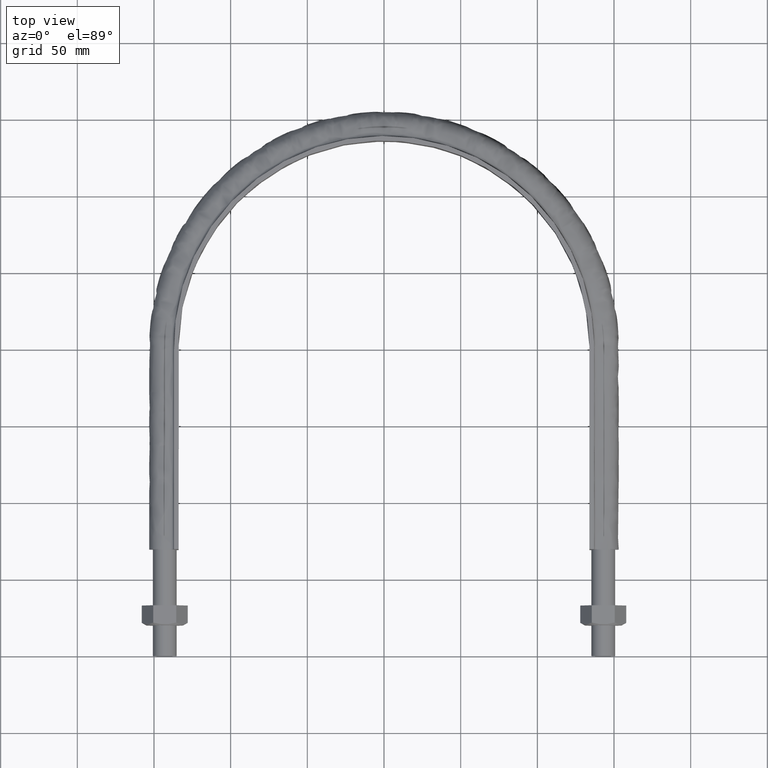
[diagram: clean part render]
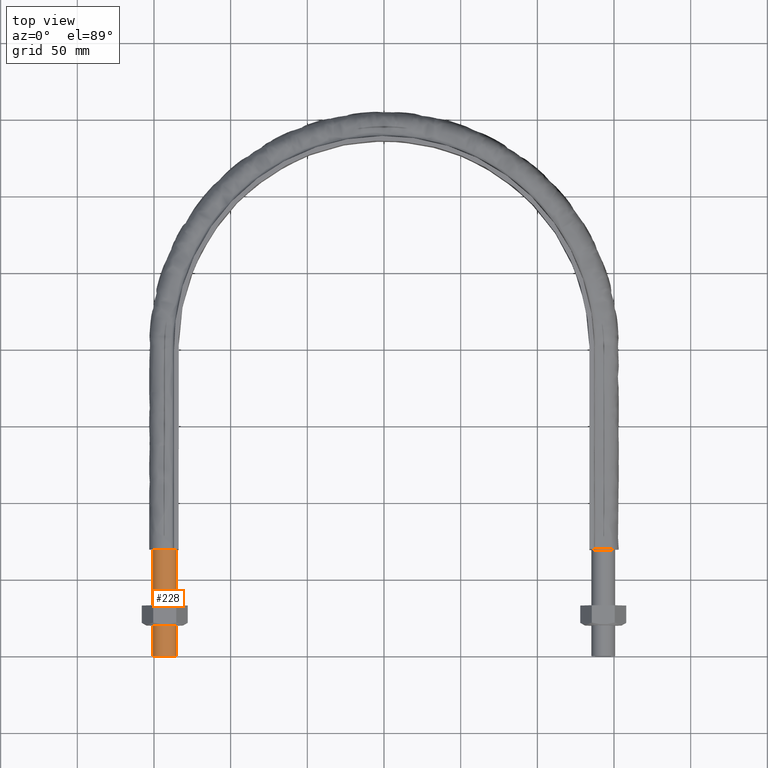
[diagram: same view with one face highlighted and labeled with its STEP entity id]
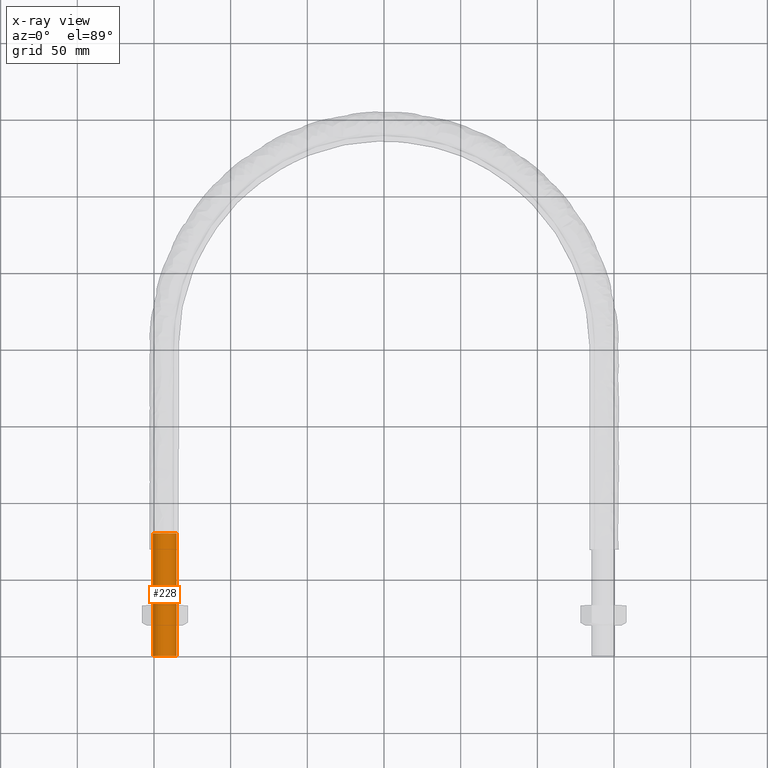
[diagram: x-ray of the same camera — body ghosted, the highlighted face saturated]
A machine part, top view. The second image highlights one B-rep face of the part: STEP entity #228.
The next image is the same camera in x-ray: the body ghosted, the highlighted face saturated — about 0% of this face is hidden behind the body in this view.
In plain terms, the highlighted cylindrical surface (bore or boss wall) has radius 7.75 mm, axis along (-0, -1, 0).
Its self-contained STEP definition (entity closure, byte-faithful):
#228 = ADVANCED_FACE( '', ( #281, #282 ), #283, .T. );
#281 = FACE_OUTER_BOUND( '', #1113, .T. );
#282 = FACE_OUTER_BOUND( '', #1114, .T. );
#283 = CYLINDRICAL_SURFACE( '', #1115, 7.75000000000001 );
#1113 = EDGE_LOOP( '', ( #1636 ) );
#1114 = EDGE_LOOP( '', ( #1637 ) );
#1115 = AXIS2_PLACEMENT_3D( '', #1638, #1639, #1640 );
#1636 = ORIENTED_EDGE( '', *, *, #1850, .F. );
#1637 = ORIENTED_EDGE( '', *, *, #1851, .T. );
#1638 = CARTESIAN_POINT( '', ( -143.000000000000, 80.0000000000001, -2.44921270764475E-014 ) );
#1639 = DIRECTION( '', ( -2.44921270764476E-016, -1.00000000000000, 3.06151588455594E-016 ) );
#1640 = DIRECTION( '', ( 1.00000000000000, -2.44921270764476E-016, -5.47382212626882E-048 ) );
#1850 = EDGE_CURVE( '', #1936, #1936, #1937, .T. );
#1851 = EDGE_CURVE( '', #1938, #1938, #1939, .T. );
#1936 = VERTEX_POINT( '', #2506 );
#1937 = CIRCLE( '', #2507, 7.75000000000001 );
#1938 = VERTEX_POINT( '', #2508 );
#1939 = CIRCLE( '', #2509, 7.75000000000001 );
#2506 = CARTESIAN_POINT( '', ( -135.250000000000, 7.11248822424931E-014, 0.000000000000000 ) );
#2507 = AXIS2_PLACEMENT_3D( '', #2784, #2785, #2786 );
#2508 = CARTESIAN_POINT( '', ( -135.250000000000, 80.0000000000001, -2.44921270764475E-014 ) );
#2509 = AXIS2_PLACEMENT_3D( '', #2787, #2788, #2789 );
#2784 = CARTESIAN_POINT( '', ( -143.000000000000, 7.30230220909178E-014, 4.24221214785834E-047 ) );
#2785 = DIRECTION( '', ( -2.44921270764476E-016, -1.00000000000000, 3.06151588455594E-016 ) );
#2786 = DIRECTION( '', ( 1.00000000000000, -2.44921270764476E-016, -5.47382212626882E-048 ) );
#2787 = CARTESIAN_POINT( '', ( -143.000000000000, 80.0000000000001, -2.44921270764475E-014 ) );
#2788 = DIRECTION( '', ( -2.44921270764476E-016, -1.00000000000000, 3.06151588455594E-016 ) );
#2789 = DIRECTION( '', ( 1.00000000000000, -2.44921270764476E-016, -5.47382212626882E-048 ) );